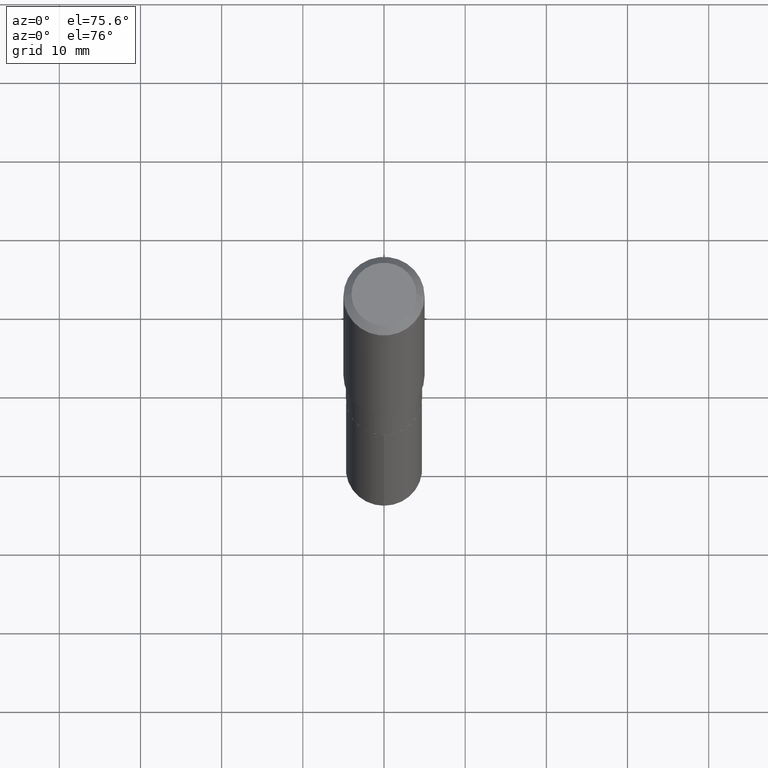
[diagram: clean part render]
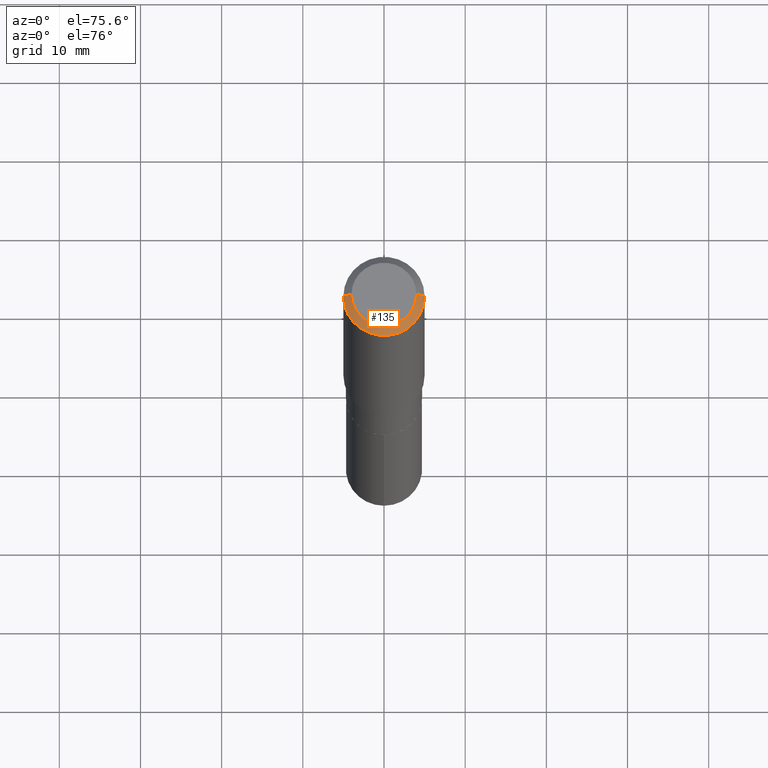
[diagram: same view with one face highlighted and labeled with its STEP entity id]
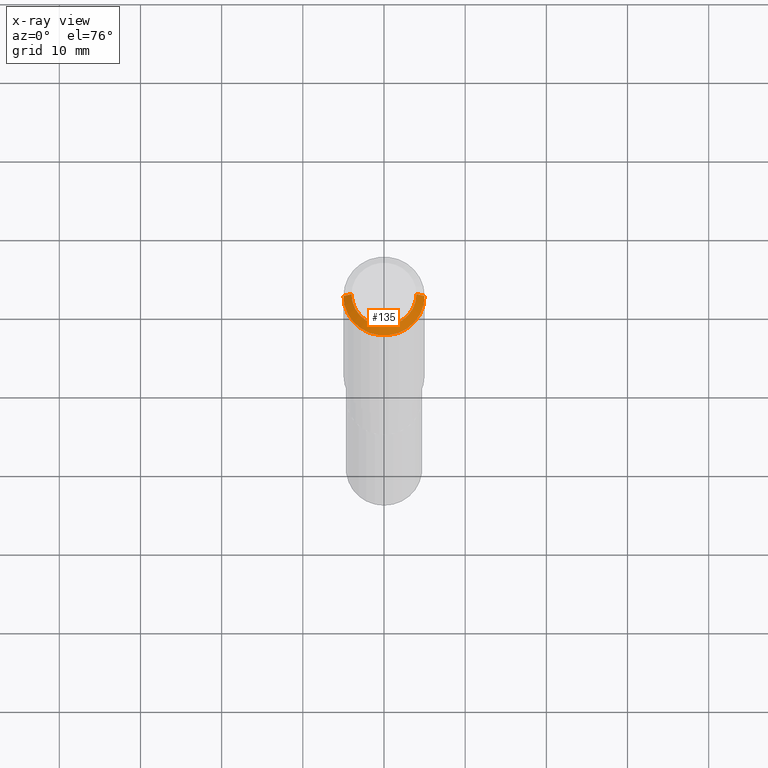
[diagram: x-ray of the same camera — body ghosted, the highlighted face saturated]
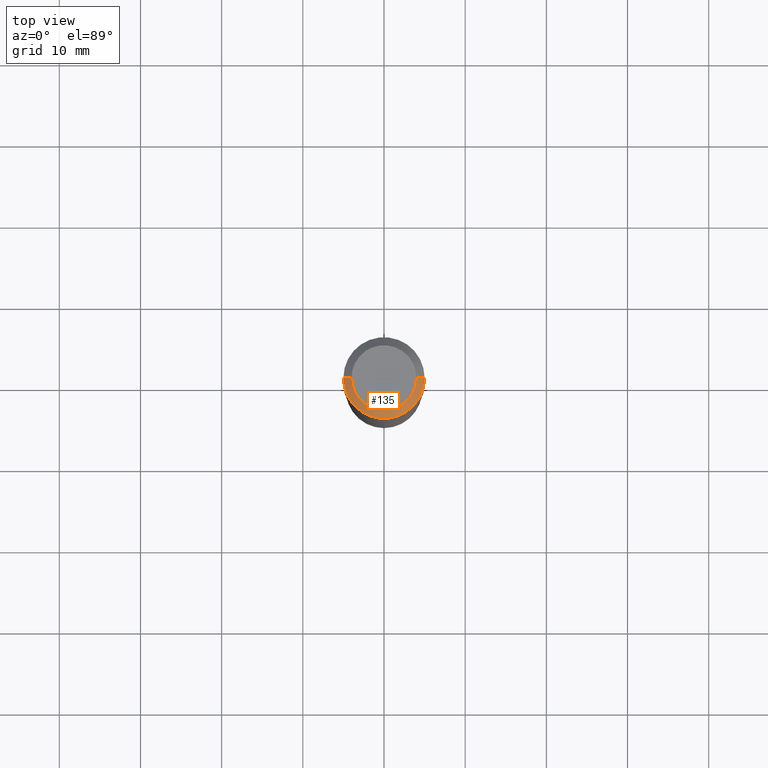
[diagram: same view with one face highlighted and labeled with its STEP entity id]
A machine part, auxiliary view. The second image highlights one B-rep face of the part: STEP entity #135.
The next image is the same camera in x-ray: the body ghosted, the highlighted face saturated — about 0% of this face is hidden behind the body in this view.
A second angle (top view) of the same face is appended — the face is thin or edge-on in the first view.
In plain terms, the highlighted conical surface has half-angle 45 deg.
Its self-contained STEP definition (entity closure, byte-faithful):
#11 = VERTEX_POINT ( 'NONE', #296 ) ;
#14 = DIRECTION ( 'NONE',  ( 0.7071067811865450192, -7.319954787623246579E-15, -0.7071067811865500152 ) ) ;
#48 = DIRECTION ( 'NONE',  ( 1.000000000000000000, -6.982962677686265922E-15, 0.000000000000000000 ) ) ;
#65 = CARTESIAN_POINT ( 'NONE',  ( -9.427742298522567634E-47, 1.346031739168368355E-32, 3.855188123715870730E-18 ) ) ;
#91 = VERTEX_POINT ( 'NONE', #222 ) ;
#100 = DIRECTION ( 'NONE',  ( 2.445468806185136597E-29, -3.491481338843145583E-15, -1.000000000000000000 ) ) ;
#103 = CIRCLE ( 'NONE', #326, 0.1574800000000000089 ) ;
#122 = ORIENTED_EDGE ( 'NONE', *, *, #204, .F. ) ;
#135 = ADVANCED_FACE ( 'NONE', ( #286 ), #155, .T. ) ;
#155 = CONICAL_SURFACE ( 'NONE', #457, 0.1968500000000000250, 0.7853981633974447263 ) ;
#159 = EDGE_CURVE ( 'NONE', #91, #480, #273, .T. ) ;
#161 = CARTESIAN_POINT ( 'NONE',  ( -0.1968500000000000250, 1.237136582792286225E-15, -0.03937000000000029365 ) ) ;
#167 = VERTEX_POINT ( 'NONE', #266 ) ;
#172 = EDGE_CURVE ( 'NONE', #480, #167, #431, .T. ) ;
#175 = VECTOR ( 'NONE', #321, 39.37007874015748143 ) ;
#204 = EDGE_CURVE ( 'NONE', #11, #167, #231, .T. ) ;
#208 = DIRECTION ( 'NONE',  ( -2.445468806185136597E-29, 3.491481338843145583E-15, 1.000000000000000000 ) ) ;
#222 = CARTESIAN_POINT ( 'NONE',  ( -0.1574800000000000089, 1.168406772637159618E-15, 3.855188123707939751E-18 ) ) ;
#228 = ORIENTED_EDGE ( 'NONE', *, *, #487, .F. ) ;
#231 = LINE ( 'NONE', #264, #297 ) ;
#236 = EDGE_LOOP ( 'NONE', ( #122, #228, #391, #485 ) ) ;
#248 = AXIS2_PLACEMENT_3D ( 'NONE', #429, #394, #48 ) ;
#264 = CARTESIAN_POINT ( 'NONE',  ( 0.1968500000000000250, -1.487948651171581601E-15, -0.03937000000000029365 ) ) ;
#266 = CARTESIAN_POINT ( 'NONE',  ( 0.1968500000000000250, -1.512055823412797189E-15, -0.03937000000000029365 ) ) ;
#273 = LINE ( 'NONE', #161, #175 ) ;
#286 = FACE_OUTER_BOUND ( 'NONE', #236, .T. ) ;
#288 = DIRECTION ( 'NONE',  ( 1.000000000000000000, -6.982962677686265922E-15, 4.876223630392693006E-29 ) ) ;
#296 = CARTESIAN_POINT ( 'NONE',  ( 0.1574800000000000089, -1.284169937930321189E-15, 3.855188123724205385E-18 ) ) ;
#297 = VECTOR ( 'NONE', #14, 39.37007874015748143 ) ;
#321 = DIRECTION ( 'NONE',  ( -0.7071067811865450192, 2.468850131082230634E-15, -0.7071067811865500152 ) ) ;
#326 = AXIS2_PLACEMENT_3D ( 'NONE', #65, #208, #288 ) ;
#391 = ORIENTED_EDGE ( 'NONE', *, *, #159, .T. ) ;
#394 = DIRECTION ( 'NONE',  ( -2.445468806185136597E-29, 3.491481338843145583E-15, 1.000000000000000000 ) ) ;
#407 = CARTESIAN_POINT ( 'NONE',  ( -0.1968500000000000250, -1.439120284647867629E-15, -0.03937000000000029365 ) ) ;
#429 = CARTESIAN_POINT ( 'NONE',  ( 9.627810689950954155E-31, -1.374596203102556547E-16, -0.03937000000000029365 ) ) ;
#431 = CIRCLE ( 'NONE', #248, 0.1968500000000000250 ) ;
#451 = CARTESIAN_POINT ( 'NONE',  ( 9.627810689950954155E-31, -1.374596203102556547E-16, -0.03937000000000029365 ) ) ;
#457 = AXIS2_PLACEMENT_3D ( 'NONE', #451, #100, #474 ) ;
#474 = DIRECTION ( 'NONE',  ( -1.000000000000000000, 6.982962677686265922E-15, 0.000000000000000000 ) ) ;
#480 = VERTEX_POINT ( 'NONE', #407 ) ;
#485 = ORIENTED_EDGE ( 'NONE', *, *, #172, .T. ) ;
#487 = EDGE_CURVE ( 'NONE', #91, #11, #103, .T. ) ;